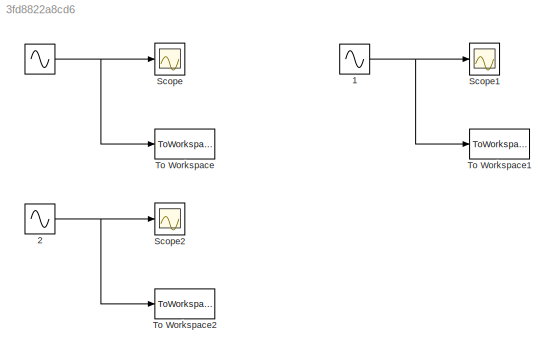
MODEL slx_3fd8822a8cd6
KIND model
BLOCK [Sin]  
  Amplitude = .49
  Bias = .5
  Commented = on
  Frequency = .04
  Phase = -1.57
  Ports = [0, 1]
  SampleTime = Sample_Time
BLOCK [Sin]  1
  Amplitude = .25
  Bias = .65
  Frequency = .04
  Phase = 1.57
  Ports = [0, 1]
  SampleTime = Sample_Time
BLOCK [Sin]  2
  Amplitude = .49
  Bias = .5
  Commented = on
  Frequency = .04
  Phase = 1.57
  Ports = [0, 1]
  SampleTime = Sample_Time
BLOCK [Scope] Scope
  Commented = on
  Floating = off
  LimitDataPoints = off
  NumInputPorts = 1
  Ports = [1]
  ShowLegends = off
BLOCK [Scope] Scope1
  Floating = off
  LimitDataPoints = off
  NumInputPorts = 1
  Ports = [1]
  SaveName = ScopeData1
  ShowLegends = off
BLOCK [Scope] Scope2
  Commented = on
  Floating = off
  LimitDataPoints = off
  NumInputPorts = 1
  Ports = [1]
  SaveName = ScopeData2
  ShowLegends = off
BLOCK [ToWorkspace] To Workspace
  Commented = on
  FixptAsFi = on
  MaxDataPoints = inf
  Ports = [1]
  SampleTime = -1
  Save2DSignal = 3-D array (concatenate along third dimension)
  VariableName = a
BLOCK [ToWorkspace] To Workspace1
  FixptAsFi = on
  MaxDataPoints = inf
  Ports = [1]
  SampleTime = -1
  Save2DSignal = 3-D array (concatenate along third dimension)
  VariableName = b
BLOCK [ToWorkspace] To Workspace2
  Commented = on
  FixptAsFi = on
  MaxDataPoints = inf
  Ports = [1]
  SampleTime = -1
  Save2DSignal = 3-D array (concatenate along third dimension)
  VariableName = c
NET  1:1 -> Scope1:1, To Workspace1:1
NET  2:1 -> Scope2:1, To Workspace2:1
NET  :1 -> Scope:1, To Workspace:1
note: NET lines group one-source signal fan-out (src -> all destinations, sorted); 1:1 wires keep LINE
